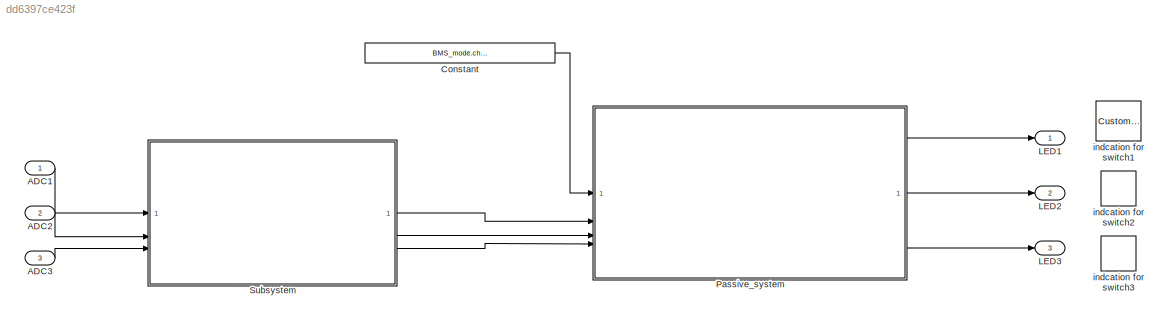
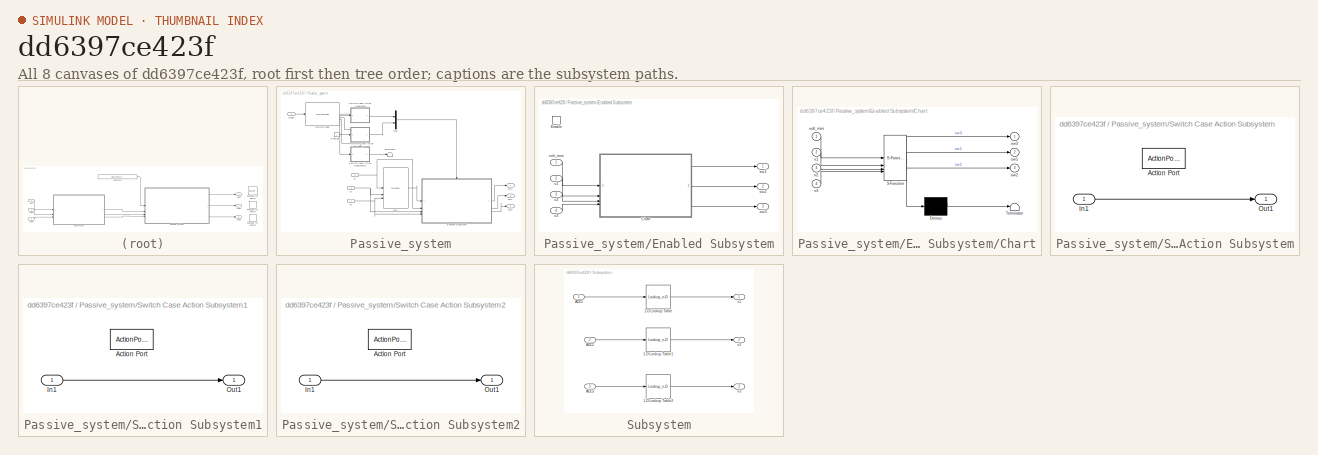
[diagram: thumbnail index - all 8 canvases of the model, root first then tree order]
MODEL slx_dd6397ce423f
KIND model
CONFIG AbsTol = auto
CONFIG EnableMultiTasking = off
CONFIG FixedStep = 1e-3
CONFIG MaxStep = 1e-3
CONFIG MinStep = auto
CONFIG RelTol = 1e-3
CONFIG SampleTimeConstraint = Unconstrained
CONFIG SolverName = FixedStepDiscrete
CONFIG StartTime = 0.0
CONFIG StopTime = 10.0
BLOCK [Inport] ADC1
BLOCK [Inport] ADC2
  Port = 2
BLOCK [Inport] ADC3
  Port = 3
BLOCK [Constant] Constant
  OutDataTypeStr = Enum: BMS_mode
  Value = BMS_mode.charging
BLOCK [Outport] LED1
BLOCK [Outport] LED2
  Port = 2
BLOCK [Outport] LED3
  Port = 3
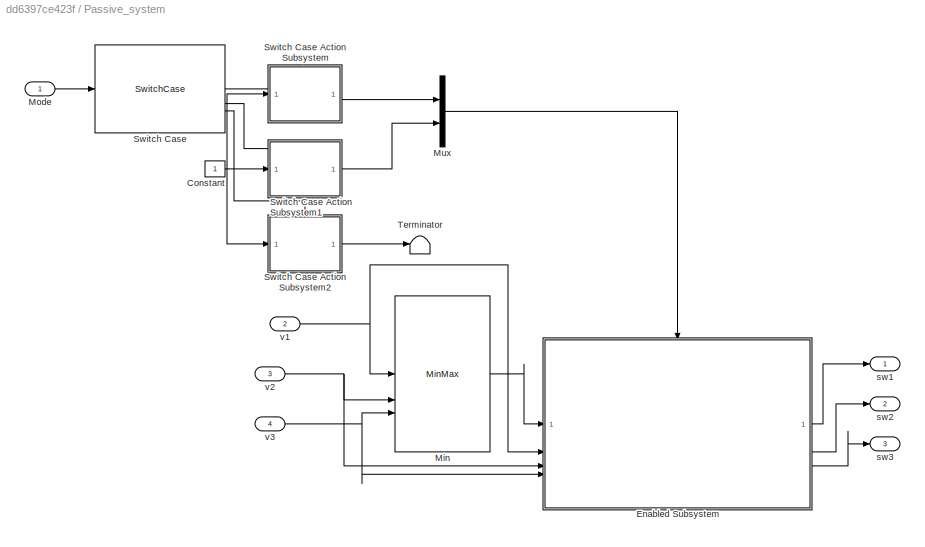
BLOCK [SubSystem] Passive_system
BLOCK [Constant] Passive_system/Constant
BLOCK [SubSystem] Passive_system/Enabled Subsystem
  TreatAsAtomicUnit = on
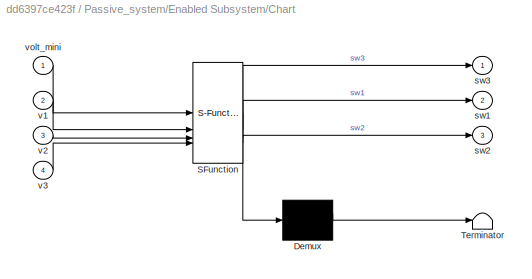
BLOCK [SubSystem] Passive_system/Enabled Subsystem/Chart
  ErrorFcn = Stateflow.Translate.translate
  PermitHierarchicalResolution = ExplicitOnly
  PortSchema = {"entries":[{"content":{"sides":[{"content":{"connectorIds":["In1","In2","In3","In4"]},"type":"ConnectorPlacement.EquallySpacedRectSide","uuid":"f29a8cda-8803-475f-abd3-4e4339aba25e"},{"content":{"connectorIds":["Out2","Out3","Out1"],"side":"RIGHT"},"type":"ConnectorPlacement.EquallySpacedRectSide","uuid":"0598b39c-caa4-4adf-8d5c-28c07f0296f4"},{"content":{"connectorIds":[],"side":"TOP"},"type":"C...<+416ch>
  SFBlockType = Chart
  TreatAsAtomicUnit = on
BLOCK [Demux] Passive_system/Enabled Subsystem/Chart/ Demux 
  Outputs = 1
BLOCK [S-Function] Passive_system/Enabled Subsystem/Chart/ SFunction 
  EnableBusSupport = on
  FunctionName = sf_sfun
  PortCounts = [4 4]
  SFcnIsStateOwnerBlock = off
  SFunctionDeploymentMode = off
  Tag = Stateflow S-Function 3
BLOCK [Terminator] Passive_system/Enabled Subsystem/Chart/ Terminator 
BLOCK [Outport] Passive_system/Enabled Subsystem/Chart/sw1
  Port = 2
BLOCK [Outport] Passive_system/Enabled Subsystem/Chart/sw2
  Port = 3
BLOCK [Outport] Passive_system/Enabled Subsystem/Chart/sw3
BLOCK [Inport] Passive_system/Enabled Subsystem/Chart/v1
  Port = 2
BLOCK [Inport] Passive_system/Enabled Subsystem/Chart/v2
  Port = 3
BLOCK [Inport] Passive_system/Enabled Subsystem/Chart/v3
  Port = 4
BLOCK [Inport] Passive_system/Enabled Subsystem/Chart/volt_mini
BLOCK [EnablePort] Passive_system/Enabled Subsystem/Enable
BLOCK [Outport] Passive_system/Enabled Subsystem/sw1
BLOCK [Outport] Passive_system/Enabled Subsystem/sw2
  Port = 2
BLOCK [Outport] Passive_system/Enabled Subsystem/sw3
  Port = 3
BLOCK [Inport] Passive_system/Enabled Subsystem/v1
  Port = 2
BLOCK [Inport] Passive_system/Enabled Subsystem/v2
  Port = 3
BLOCK [Inport] Passive_system/Enabled Subsystem/v3
  Port = 4
BLOCK [Inport] Passive_system/Enabled Subsystem/volt_mini
BLOCK [MinMax] Passive_system/Min
  Inputs = 3
BLOCK [Inport] Passive_system/Mode
BLOCK [Mux] Passive_system/Mux
  DisplayOption = bar
  Inputs = 2
BLOCK [SwitchCase] Passive_system/Switch Case
  CaseConditions = [BMS_mode.off,BMS_mode.charging,BMS_mode.discharging]
  ShowDefaultCase = off
BLOCK [SubSystem] Passive_system/Switch Case Action Subsystem
  TreatAsAtomicUnit = on
BLOCK [ActionPort] Passive_system/Switch Case Action Subsystem/Action Port
  ActionPortLabel = case [ off ]:
BLOCK [Inport] Passive_system/Switch Case Action Subsystem/In1
BLOCK [Outport] Passive_system/Switch Case Action Subsystem/Out1
BLOCK [SubSystem] Passive_system/Switch Case Action Subsystem1
  TreatAsAtomicUnit = on
BLOCK [ActionPort] Passive_system/Switch Case Action Subsystem1/Action Port
  ActionPortLabel = case [ charging ]:
BLOCK [Inport] Passive_system/Switch Case Action Subsystem1/In1
BLOCK [Outport] Passive_system/Switch Case Action Subsystem1/Out1
BLOCK [SubSystem] Passive_system/Switch Case Action Subsystem2
  TreatAsAtomicUnit = on
BLOCK [ActionPort] Passive_system/Switch Case Action Subsystem2/Action Port
  ActionPortLabel = case [ discharging ]:
BLOCK [Inport] Passive_system/Switch Case Action Subsystem2/In1
BLOCK [Outport] Passive_system/Switch Case Action Subsystem2/Out1
BLOCK [Terminator] Passive_system/Terminator
BLOCK [Outport] Passive_system/sw1
BLOCK [Outport] Passive_system/sw2
  Port = 2
BLOCK [Outport] Passive_system/sw3
  Port = 3
BLOCK [Inport] Passive_system/v1
  Port = 2
BLOCK [Inport] Passive_system/v2
  Port = 3
BLOCK [Inport] Passive_system/v3
  Port = 4
BLOCK [SubSystem] Subsystem
BLOCK [Lookup_n-D] Subsystem/1-D Lookup Table
  BreakpointsForDimension1 = int16([347,406,570,722,901,1101,1344,1434,1671,1785,1937,2139])
  BreakpointsForDimension1FirstPoint = 10
  BreakpointsForDimension1Spacing = 12
  BreakpointsForDimension2FirstPoint = 10
  BreakpointsForDimension2Spacing = 12
  DiagnosticForOutOfRangeInput = Error
  ExtrapMethod = Cubic spline
  InputPortMap = u0
  InternalRulePriority = Speed
  InterpMethod = Cubic spline
  LookupTableObject = ''
  NumberOfTableDimensions = 1
  RndMeth = Simplest
  Table = single([0.11,0.28,0.72,1.13,1.61,2.16,2.84,3.11,3.77,4.1,4.53,5.12])
BLOCK [Lookup_n-D] Subsystem/1-D Lookup Table1
  BreakpointsForDimension1 = int16([364,468,633,845,1028,1094,1264,1457,1591,1826,1943,2126,2215])
  BreakpointsForDimension1FirstPoint = 10
  BreakpointsForDimension1Spacing = 12
  BreakpointsForDimension2FirstPoint = 10
  BreakpointsForDimension2Spacing = 12
  DiagnosticForOutOfRangeInput = Error
  ExtrapMethod = Cubic spline
  InputPortMap = u0
  InternalRulePriority = Speed
  InterpMethod = Cubic spline
  LookupTableObject = ''
  NumberOfTableDimensions = 1
  RndMeth = Simplest
  Table = single([0.08,0.36,0.78,1.33,1.81,1.98,2.44,2.97,3.34,3.97,4.29,4.79,5.02])
BLOCK [Lookup_n-D] Subsystem/1-D Lookup Table2
  BreakpointsForDimension1 = int16([286,662,795,948,1112,1228,1493,1705,1965,2172])
  BreakpointsForDimension1FirstPoint = 10
  BreakpointsForDimension1Spacing = 12
  BreakpointsForDimension2FirstPoint = 10
  BreakpointsForDimension2Spacing = 12
  DiagnosticForOutOfRangeInput = Error
  ExtrapMethod = Cubic spline
  InputPortMap = u0
  InternalRulePriority = Speed
  InterpMethod = Cubic spline
  LookupTableObject = ''
  NumberOfTableDimensions = 1
  RndMeth = Simplest
  Table = single([0.06,1.06,1.39,1.80,2.20,2.51,3.08,3.57,4.21,4.75])
BLOCK [Inport] Subsystem/ADC1
BLOCK [Inport] Subsystem/ADC2
  Port = 2
BLOCK [Inport] Subsystem/ADC3
  Port = 3
BLOCK [Outport] Subsystem/v1
BLOCK [Outport] Subsystem/v2
  Port = 2
BLOCK [Outport] Subsystem/v3
  Port = 3
BLOCK [CustomWebBlock] indcation for switch1
  Configuration = {"components":[{"name":"BackgroundImageComponent","settings":{"image":{"size":[150,150],"src":"data:image\/svg+xml;base64,PHN2ZyB4bWxucz0iaHR0cDovL3d3dy53My5vcmcvMjAwMC9zdmciIHhtbG5zOnhsaW5rPSJodHRwOi8vd3d3LnczLm9yZy8xOTk5L3hsaW5rIiB2aWV3Qm94PSIwIDAgNTAwIDUwMCI+PGRlZnM+PHN0eWxlPi5he2ZpbGw6dXJsKCNhKTt9LmJ7ZmlsbDp1cmwoI2IpO30uY3tmaWxsOnVybCgjYyk7fTwvc3R5bGU+PHJhZGlhbEdyYWRpZW50IGlkPSJhIiBjeD0iMjgzLj...<+21371ch>
  LabelPosition = Hide
  ShowInitialText = on
BLOCK [CustomWebBlock] indcation for switch2
  Configuration = {"components":[{"name":"BackgroundImageComponent","settings":{"image":{"size":[150,150],"src":"data:image\/svg+xml;base64,PHN2ZyB4bWxucz0iaHR0cDovL3d3dy53My5vcmcvMjAwMC9zdmciIHhtbG5zOnhsaW5rPSJodHRwOi8vd3d3LnczLm9yZy8xOTk5L3hsaW5rIiB2aWV3Qm94PSIwIDAgNTAwIDUwMCI+PGRlZnM+PHN0eWxlPi5he2ZpbGw6dXJsKCNhKTt9LmJ7ZmlsbDp1cmwoI2IpO30uY3tmaWxsOnVybCgjYyk7fTwvc3R5bGU+PHJhZGlhbEdyYWRpZW50IGlkPSJhIiBjeD0iMjgzLj...<+21354ch>
  LabelPosition = Hide
  ShowInitialText = on
BLOCK [CustomWebBlock] indcation for switch3
  Configuration = {"components":[{"name":"BackgroundImageComponent","settings":{"image":{"size":[150,150],"src":"data:image\/svg+xml;base64,PHN2ZyB4bWxucz0iaHR0cDovL3d3dy53My5vcmcvMjAwMC9zdmciIHhtbG5zOnhsaW5rPSJodHRwOi8vd3d3LnczLm9yZy8xOTk5L3hsaW5rIiB2aWV3Qm94PSIwIDAgNTAwIDUwMCI+PGRlZnM+PHN0eWxlPi5he2ZpbGw6dXJsKCNhKTt9LmJ7ZmlsbDp1cmwoI2IpO30uY3tmaWxsOnVybCgjYyk7fTwvc3R5bGU+PHJhZGlhbEdyYWRpZW50IGlkPSJhIiBjeD0iMjgzLj...<+21354ch>
  LabelPosition = Hide
  ShowInitialText = on
LINE ADC1:1 -> Subsystem:1
LINE ADC2:1 -> Subsystem:2
LINE ADC3:1 -> Subsystem:3
LINE Constant:1 -> Passive_system:1
NET Passive_system/Constant:1 -> Passive_system/Switch Case Action Subsystem1:1, Passive_system/Switch Case Action Subsystem2:1, Passive_system/Switch Case Action Subsystem:1
LINE Passive_system/Enabled Subsystem/Chart:1 -> Passive_system/Enabled Subsystem/sw3:1
LINE Passive_system/Enabled Subsystem/Chart:2 -> Passive_system/Enabled Subsystem/sw1:1
LINE Passive_system/Enabled Subsystem/Chart:3 -> Passive_system/Enabled Subsystem/sw2:1
LINE Passive_system/Enabled Subsystem/v1:1 -> Passive_system/Enabled Subsystem/Chart:2
LINE Passive_system/Enabled Subsystem/v2:1 -> Passive_system/Enabled Subsystem/Chart:3
LINE Passive_system/Enabled Subsystem/v3:1 -> Passive_system/Enabled Subsystem/Chart:4
LINE Passive_system/Enabled Subsystem/volt_mini:1 -> Passive_system/Enabled Subsystem/Chart:1
LINE Passive_system/Enabled Subsystem:1 -> Passive_system/sw1:1
LINE Passive_system/Enabled Subsystem:2 -> Passive_system/sw2:1
LINE Passive_system/Enabled Subsystem:3 -> Passive_system/sw3:1
LINE Passive_system/Min:1 -> Passive_system/Enabled Subsystem:1
LINE Passive_system/Mode:1 -> Passive_system/Switch Case:1
LINE Passive_system/Mux:1 -> Passive_system/Enabled Subsystem:enable
LINE Passive_system/Switch Case Action Subsystem/In1:1 -> Passive_system/Switch Case Action Subsystem/Out1:1
LINE Passive_system/Switch Case Action Subsystem1/In1:1 -> Passive_system/Switch Case Action Subsystem1/Out1:1
LINE Passive_system/Switch Case Action Subsystem1:1 -> Passive_system/Mux:2
LINE Passive_system/Switch Case Action Subsystem2/In1:1 -> Passive_system/Switch Case Action Subsystem2/Out1:1
LINE Passive_system/Switch Case Action Subsystem2:1 -> Passive_system/Terminator:1
LINE Passive_system/Switch Case Action Subsystem:1 -> Passive_system/Mux:1
LINE Passive_system/Switch Case:1 -> Passive_system/Switch Case Action Subsystem:ifaction
LINE Passive_system/Switch Case:2 -> Passive_system/Switch Case Action Subsystem1:ifaction
LINE Passive_system/Switch Case:3 -> Passive_system/Switch Case Action Subsystem2:ifaction
NET Passive_system/v1:1 -> Passive_system/Enabled Subsystem:2, Passive_system/Min:1
NET Passive_system/v2:1 -> Passive_system/Enabled Subsystem:3, Passive_system/Min:2
NET Passive_system/v3:1 -> Passive_system/Enabled Subsystem:4, Passive_system/Min:3
LINE Passive_system:1 -> LED1:1
LINE Passive_system:2 -> LED2:1
LINE Passive_system:3 -> LED3:1
LINE Subsystem/1-D Lookup Table1:1 -> Subsystem/v2:1
LINE Subsystem/1-D Lookup Table2:1 -> Subsystem/v3:1
LINE Subsystem/1-D Lookup Table:1 -> Subsystem/v1:1
LINE Subsystem/ADC1:1 -> Subsystem/1-D Lookup Table:1
LINE Subsystem/ADC2:1 -> Subsystem/1-D Lookup Table1:1
LINE Subsystem/ADC3:1 -> Subsystem/1-D Lookup Table2:1
LINE Subsystem:1 -> Passive_system:2
LINE Subsystem:2 -> Passive_system:3
LINE Subsystem:3 -> Passive_system:4
note: NET lines group one-source signal fan-out (src -> all destinations, sorted); 1:1 wires keep LINE
CHART Passive_system/Enabled
Subsystem/Chart states=0 transitions=40
CHART  states=0 transitions=0
